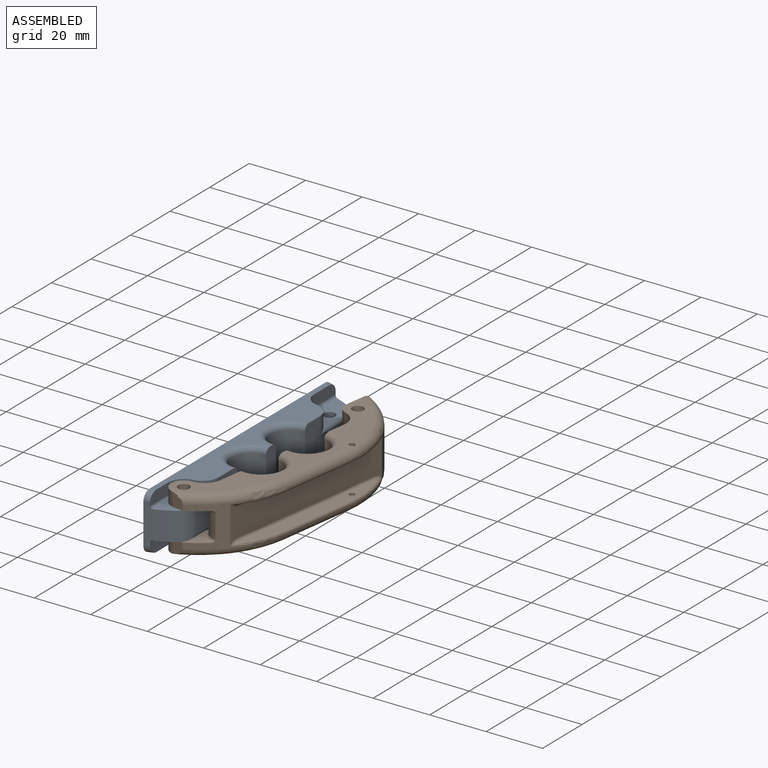
[diagram: assembled view]
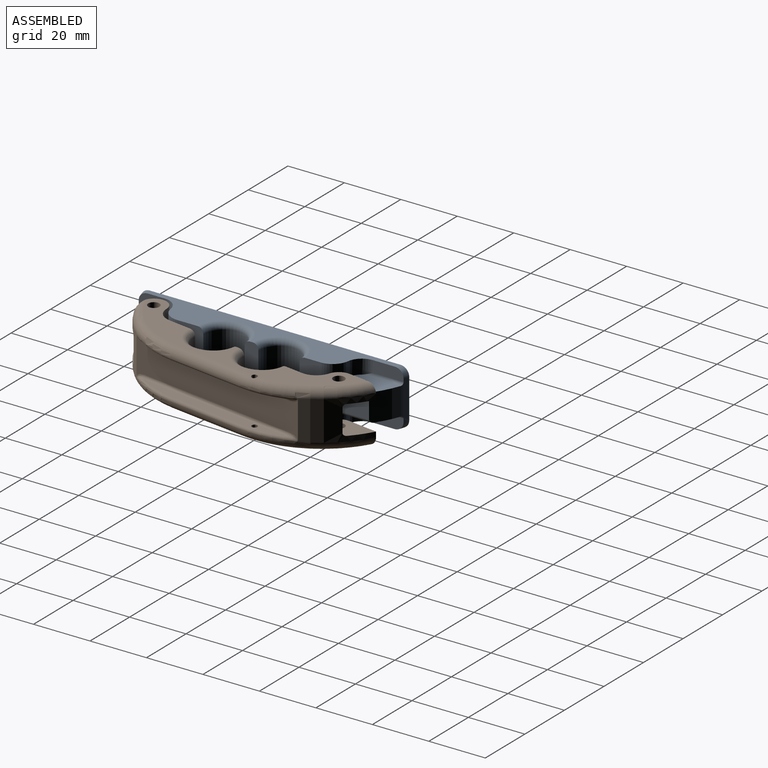
[diagram: assembled view, second angle]
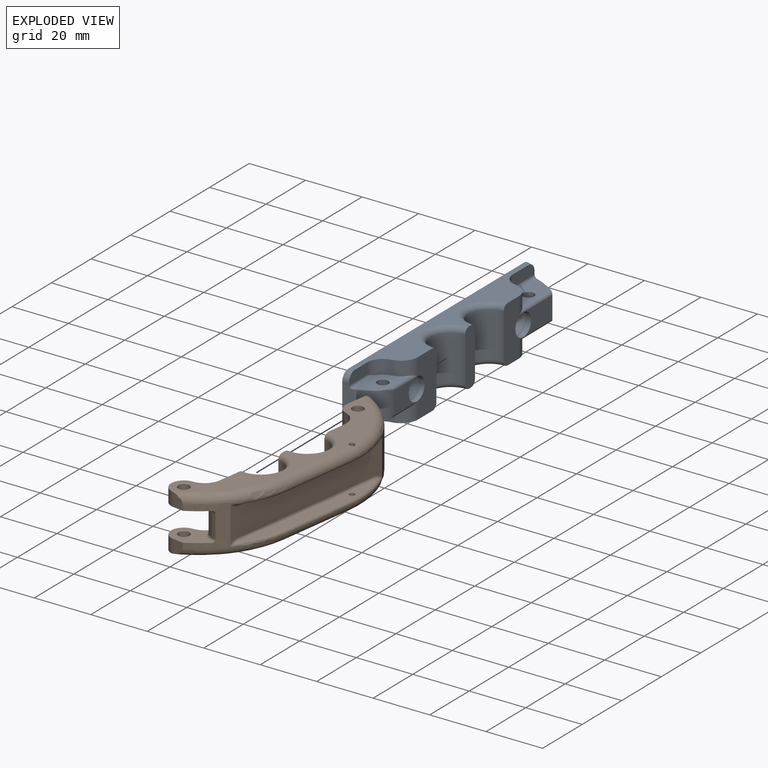
[diagram: exploded view]
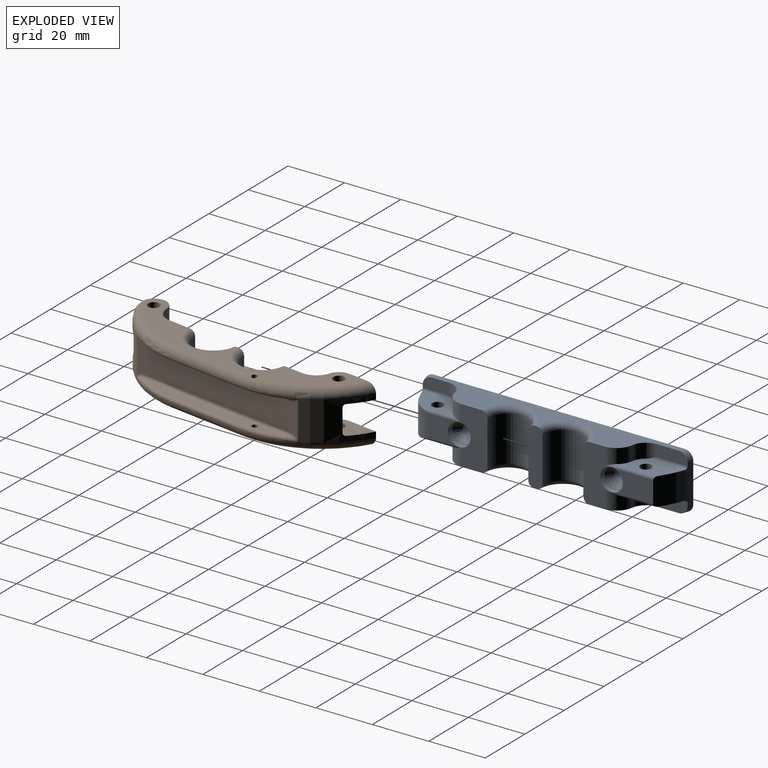
[diagram: exploded view, second angle]
ASSEMBLY  parts=2 mates=2
PART A: 55 faces, bbox 13.3x95.1x20 mm
  f0: plane 10.09x7.8mm, normal (1,0,0), area 60.6mm2, adj f31,f47,f49,f50
  f1: plane 13.48x7.6mm, normal (1,0,0), area 87.1mm2, adj f4,f33,f46,f48
  f2: plane 88.77x12mm, normal (0,0,-1), area 532.7mm2, adj f3,f5,f9,f11,f13,f14,f15,f25
  f3: plane 20x8.7mm, normal (1,0,0), area 146.6mm2, adj f2,f6,f10,f24,f27,f33,f42,f44
  f4: cylinder r=35mm len=14mm, axis (0,0,-1), area 140.1mm2, adj f1,f11,f21,f22,f26,f28,f38,f40
  f5: plane 20x9.21mm, normal (1,0,0), area 163.3mm2, adj f2,f6,f8,f13,f16,f31,f43,f45
  f6: plane 88.77x12mm, normal (0,0,1), area 532.7mm2, adj f3,f5,f9,f11,f16,f17,f18,f22
  f7: cylinder r=35mm len=14mm, axis (0,0,-1), area 101mm2, adj f11,f12,f15,f18,f19,f39,f41,f50
  f8: cylinder r=7.25mm len=16mm, axis (0,0,-1), area 364.4mm2, adj f5,f9,f43,f45
  f9: plane 20x5mm, normal (1,0,0), area 96.6mm2, adj f2,f6,f8,f10,f42,f43,f44,f45
  f10: cylinder r=7.25mm len=16mm, axis (0,0,-1), area 364.4mm2, adj f3,f9,f42,f44
  f11: plane 95x20mm, normal (-1,0,0), area 1869.3mm2, adj f2,f4,f6,f7,f34,f36,f38,f39
  f12: plane 16.85x7.9mm, normal (0,0,-1), area 86.1mm2, adj f7,f13,f14,f20,f49,f50,f54
  f13: cylinder r=6.1mm len=6.07mm, axis (0,0,1), area 45.3mm2, adj f2,f5,f12,f14,f31,f49
  f14: cylinder r=5.5mm len=5.45mm, axis (0,0,1), area 38.1mm2, adj f2,f12,f13,f15,f54
  f15: plane 9.2x4mm, normal (1,0,0), area 34.8mm2, adj f2,f7,f14,f39,f54
  f16: cylinder r=6.1mm len=6.07mm, axis (0,0,1), area 45.3mm2, adj f5,f6,f17,f19,f31,f47
  f17: cylinder r=5.5mm len=5.45mm, axis (0,0,1), area 38.1mm2, adj f6,f16,f18,f19,f53
  f18: plane 9.2x4mm, normal (1,0,0), area 34.8mm2, adj f6,f7,f17,f41,f53
  f19: plane 16.85x7.9mm, normal (0,0,1), area 86.1mm2, adj f7,f16,f17,f20,f47,f50,f53
  f20: cylinder r=2mm len=10mm, axis (0,0,1), area 125.7mm2, adj f12,f19
  f21: plane 18.54x7.9mm, normal (0,0,1), area 100.1mm2, adj f4,f23,f24,f29,f46,f52
  f22: plane 10.9x4.1mm, normal (1,0,0), area 42.7mm2, adj f4,f6,f23,f40,f52
  f23: cylinder r=5.5mm len=5.45mm, axis (0,0,-1), area 38.9mm2, adj f6,f21,f22,f24,f52
  f24: cylinder r=6.1mm len=6.2mm, axis (0,0,-1), area 44.1mm2, adj f3,f6,f21,f23,f46
  f25: cylinder r=5.5mm len=5.45mm, axis (0,0,-1), area 38.9mm2, adj f2,f26,f27,f28,f51
  f26: plane 10.9x4.1mm, normal (1,0,0), area 42.7mm2, adj f2,f4,f25,f38,f51
  f27: cylinder r=6.1mm len=6.2mm, axis (0,0,-1), area 44.1mm2, adj f2,f3,f25,f28,f48
  f28: plane 18.54x7.9mm, normal (0,0,-1), area 100.1mm2, adj f4,f25,f27,f29,f48,f51
  f29: cylinder r=2mm len=9.8mm, axis (0,0,-1), area 123.2mm2, adj f21,f28
  f30: plane 8x8mm, normal (1,0,0), area 2.5mm2, adj f31,f37
  f31: cylinder r=4mm len=8mm, axis (1,0,0), area 50.3mm2, adj f0,f5,f13,f16,f30,f47,f49
  f32: plane 8x8mm, normal (1,0,0), area 2.5mm2, adj f33,f35
  f33: cylinder r=4mm len=8mm, axis (1,0,0), area 50.3mm2, adj f1,f3,f32,f46,f48
  f34: cylinder r=1.9mm len=7.7mm, axis (1,0,0), area 91.8mm2, adj f11,f35
  f35: cone r=1.9mm half-angle=41deg, axis (1,0,0), area 55.5mm2, adj f32,f34
  f36: cylinder r=1.9mm len=7.7mm, axis (1,0,0), area 91.8mm2, adj f11,f37
  f37: cone r=1.9mm half-angle=41deg, axis (1,0,0), area 55.5mm2, adj f30,f36
  f38: torus R=32mm, axis (0,0,1), area 9.9mm2, adj f2,f4,f11,f26
  f39: torus R=32mm, axis (0,0,1), area 9.9mm2, adj f2,f7,f11,f15
  f40: torus R=32mm, axis (0,0,1), area 9.9mm2, adj f4,f6,f11,f22
  f41: torus R=32mm, axis (0,0,1), area 9.9mm2, adj f6,f7,f11,f18
  f42: torus R=9.25mm, axis (0,0,1), area 78.7mm2, adj f2,f3,f9,f10
  f43: torus R=9.25mm, axis (0,0,1), area 78.7mm2, adj f2,f5,f8,f9
  f44: torus R=9.25mm, axis (0,0,1), area 78.7mm2, adj f3,f6,f9,f10
  f45: torus R=9.25mm, axis (0,0,1), area 78.7mm2, adj f5,f6,f8,f9
  f46: cylinder r=1.1mm len=17.61mm, axis (0,-1,0), area 26.5mm2, adj f1,f3,f4,f21,f24,f33
  f47: cylinder r=1.1mm len=15.36mm, axis (0,-1,0), area 20.4mm2, adj f0,f16,f19,f31,f50
  f48: cylinder r=1.1mm len=17.61mm, axis (0,-1,0), area 26.5mm2, adj f1,f3,f4,f27,f28,f33
  f49: cylinder r=1.1mm len=15.36mm, axis (0,1,0), area 20.4mm2, adj f0,f12,f13,f31,f50
  f50: cylinder r=7mm len=10mm, axis (0,0,-1), area 69.9mm2, adj f0,f7,f12,f19,f47,f49
  f51: cylinder r=1mm len=14.07mm, axis (0,1,0), area 19.6mm2, adj f4,f25,f26,f28
  f52: cylinder r=1mm len=14.07mm, axis (0,1,0), area 19.6mm2, adj f4,f21,f22,f23
  f53: cylinder r=1mm len=12.37mm, axis (0,-1,0), area 16.9mm2, adj f7,f17,f18,f19
  f54: cylinder r=1mm len=12.37mm, axis (0,-1,0), area 16.9mm2, adj f7,f12,f14,f15
PART B: 66 faces, bbox 28.9x97.6x21.2 mm
  f0: plane 20x12.67mm, normal (-1,0,0), area 222.8mm2, adj f6,f7,f8,f12,f13,f54,f56,f57
  f1: cylinder r=35mm len=14mm, axis (0,0,-1), area 98.3mm2, adj f9,f11,f15,f16,f30,f34,f41,f44
  f2: plane 24.67x20mm, normal (-1,0,0), area 301.1mm2, adj f3,f4,f7,f8,f22,f23,f53,f55
  f3: cylinder r=35mm len=17.89mm, axis (0,0,-1), area 222.8mm2, adj f2,f19,f21,f25,f26,f30,f43,f46
  f4: cylinder r=7.25mm len=16mm, axis (0,0,-1), area 364.4mm2, adj f2,f5,f53,f55
  f5: plane 20x5mm, normal (-1,0,0), area 96.6mm2, adj f4,f6,f7,f8,f53,f54,f55,f56
  f6: cylinder r=7.25mm len=16mm, axis (0,0,-1), area 364.4mm2, adj f0,f5,f54,f56
  f7: plane 85.29x20mm, normal (0,0,1), area 528.2mm2, adj f0,f2,f5,f13,f14,f17,f20,f21
  f8: plane 85.29x20mm, normal (0,0,-1), area 528.2mm2, adj f0,f2,f5,f10,f12,f18,f23,f24
  f9: plane 14.41x11.71mm, normal (0,0,1), area 84.7mm2, adj f1,f10,f11,f12,f18,f62
  f10: cylinder r=4.5mm len=8.95mm, axis (0,0,1), area 65.8mm2, adj f8,f9,f11,f12,f47
  f11: plane 5.97x5.01mm, normal (0,-1,0), area 15.2mm2, adj f1,f9,f10,f47
  f12: cylinder r=6.1mm len=6.03mm, axis (0,0,1), area 43.9mm2, adj f0,f8,f9,f10,f61,f62
  f13: cylinder r=6.1mm len=6.03mm, axis (0,0,1), area 43.9mm2, adj f0,f7,f14,f16,f58,f59
  f14: cylinder r=4.5mm len=8.95mm, axis (0,0,1), area 65.8mm2, adj f7,f13,f15,f16,f50
  f15: plane 5.97x5.01mm, normal (0,-1,0), area 15.2mm2, adj f1,f14,f16,f50
  f16: plane 14.41x11.71mm, normal (0,0,-1), area 84.7mm2, adj f1,f13,f14,f15,f17,f59
  f17: cylinder r=2mm len=4.9mm, axis (0,0,1), area 61.6mm2, adj f7,f16
  f18: cylinder r=2mm len=4.9mm, axis (0,0,1), area 61.6mm2, adj f8,f9
  f19: plane 17.69x8.01mm, normal (0,0,-1), area 92.4mm2, adj f3,f20,f21,f22,f28,f65
  f20: cylinder r=4.5mm len=4.9mm, axis (0,0,-1), area 31.3mm2, adj f7,f19,f21,f22
  f21: plane 11.08x5.42mm, normal (-1,0,0), area 49.7mm2, adj f3,f7,f19,f20,f52
  f22: cylinder r=6.1mm len=6.03mm, axis (0,0,-1), area 44.2mm2, adj f2,f7,f19,f20,f65
  f23: cylinder r=6.1mm len=6.03mm, axis (0,0,-1), area 44.2mm2, adj f2,f8,f24,f26,f64
  f24: cylinder r=4.5mm len=4.9mm, axis (0,0,-1), area 31.3mm2, adj f8,f23,f25,f26
  f25: plane 11.08x5.42mm, normal (-1,0,0), area 49.7mm2, adj f3,f8,f24,f26,f49
  f26: plane 17.69x8.01mm, normal (0,0,1), area 92.4mm2, adj f3,f23,f24,f25,f27,f64
  f27: cylinder r=2mm len=4.9mm, axis (0,0,-1), area 61.6mm2, adj f8,f26
  f28: cylinder r=2mm len=4.9mm, axis (0,0,-1), area 61.6mm2, adj f7,f19
  f29: plane 56.37x3.25mm, normal (0,0,-1), area 149.3mm2, adj f33,f35,f36,f37,f45
  f30: plane 64.24x12.5mm, normal (1,0,0), area 647.5mm2, adj f1,f3,f41,f42,f43,f44,f45,f46
  f31: plane 56.37x3.25mm, normal (0,0,1), area 149.3mm2, adj f32,f38,f39,f40,f42
  f32: cylinder r=1mm len=4mm, axis (0,0,-1), area 25.1mm2, adj f8,f31,f49
  f33: cylinder r=1mm len=4mm, axis (0,0,-1), area 25.1mm2, adj f7,f29,f52
  f34: plane 8.2x0.22mm, normal (0,-1,0), area 1.8mm2, adj f1,f57,f60,f63
  f35: torus R=34mm, axis (0,0,1), area 26.9mm2, adj f29,f36,f46,f52
  f36: cylinder r=1mm len=27.35mm, axis (0,1,0), area 43mm2, adj f29,f35,f37,f51
  f37: torus R=34mm, axis (0,0,1), area 26.9mm2, adj f29,f36,f44,f50
  f38: torus R=34mm, axis (0,0,1), area 26.9mm2, adj f31,f39,f43,f49
  f39: cylinder r=1mm len=27.35mm, axis (0,-1,0), area 43mm2, adj f31,f38,f40,f48
  f40: torus R=34mm, axis (0,0,1), area 26.9mm2, adj f31,f39,f41,f47
  f41: bspline ~5.32x2.07mm, area 4.5mm2, adj f1,f30,f40,f42
  f42: cylinder r=1mm len=56.37mm, axis (0,-1,0), area 88.5mm2, adj f30,f31,f41,f43
  f43: bspline ~5.32x2.07mm, area 4.5mm2, adj f3,f30,f38,f42
  f44: bspline ~5.32x2.07mm, area 4.5mm2, adj f1,f30,f37,f45
  f45: cylinder r=1mm len=56.37mm, axis (0,1,0), area 88.5mm2, adj f29,f30,f44,f46
  f46: bspline ~5.32x2.07mm, area 4.5mm2, adj f3,f30,f35,f45
  f47: torus R=32mm, axis (0,0,1), area 161.7mm2, adj f1,f8,f10,f11,f40,f48
  f48: cylinder r=3mm len=27.35mm, axis (0,1,0), area 128.9mm2, adj f8,f39,f47,f49
  f49: torus R=32mm, axis (0,0,1), area 190.4mm2, adj f3,f8,f25,f32,f38,f48
  f50: torus R=32mm, axis (0,0,1), area 161.7mm2, adj f1,f7,f14,f15,f37,f51
  f51: cylinder r=3mm len=27.35mm, axis (0,-1,0), area 128.9mm2, adj f7,f36,f50,f52
  f52: torus R=32mm, axis (0,0,1), area 190.4mm2, adj f3,f7,f21,f33,f35,f51
  f53: torus R=9.25mm, axis (0,0,1), area 78.7mm2, adj f2,f4,f5,f8
  f54: torus R=9.25mm, axis (0,0,1), area 78.7mm2, adj f0,f5,f6,f8
  f55: torus R=9.25mm, axis (0,0,1), area 78.7mm2, adj f2,f4,f5,f7
  f56: torus R=9.25mm, axis (0,0,1), area 78.7mm2, adj f0,f5,f6,f7
  f57: cylinder r=6mm len=8.2mm, axis (0,0,1), area 77.3mm2, adj f0,f34,f59,f62
  f58: cylinder r=1mm len=2.45mm, axis (0,1,0), area 1.3mm2, adj f0,f13,f59
  f59: torus R=7mm, axis (0,0,1), area 15.3mm2, adj f1,f13,f16,f57,f58,f60
  f60: cylinder r=1mm len=0.68mm, axis (-1,0,0), area 0.1mm2, adj f1,f34,f59
  f61: cylinder r=1mm len=2.45mm, axis (0,1,0), area 1.3mm2, adj f0,f12,f62
  f62: torus R=7mm, axis (0,0,-1), area 15.3mm2, adj f1,f9,f12,f57,f61,f63
  f63: cylinder r=1mm len=0.68mm, axis (-1,0,0), area 0.1mm2, adj f1,f34,f62
  f64: cylinder r=1mm len=16.87mm, axis (0,1,0), area 23.3mm2, adj f2,f3,f23,f26
  f65: cylinder r=1mm len=16.87mm, axis (0,1,0), area 23.3mm2, adj f2,f3,f19,f22
PLACE A t=(10.86,-20.37,10.66)mm fixed
PLACE B rot(axis=(0,0,-1),8.2deg) t=(9.53,-19.19,10.66)mm
MATE cylindrical B.f10 <-> A.f14  axis (0,0,1) through (18.36,-10.57,30.66)mm
MATE planar B.f7 <-> A.f13  axis (0,0,1) through (31.54,27,30.66)mm
